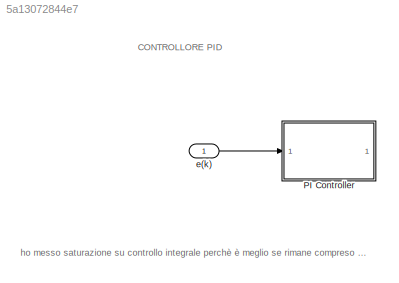
MODEL slx_5a13072844e7
KIND model
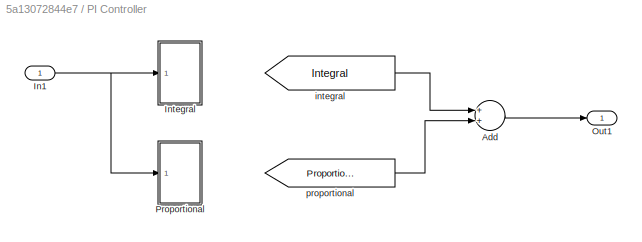
BLOCK [SubSystem] PI Controller
  FunctionWithSeparateData = off
  MaskHideContents = off
  MinAlgLoopOccurrences = off
  Opaque = off
  Ports = [1, 1]
  PropExecContextOutsideSubsystem = off
  RTWSystemCode = Auto
  RequestExecContextInheritance = off
BLOCK [Sum] PI Controller/Add
  InputSameDT = off
  OutDataTypeStr = Inherit: Inherit via internal rule
  Ports = [2, 1]
  SaturateOnIntegerOverflow = off
BLOCK [Inport] PI Controller/In1
  IconDisplay = Port number
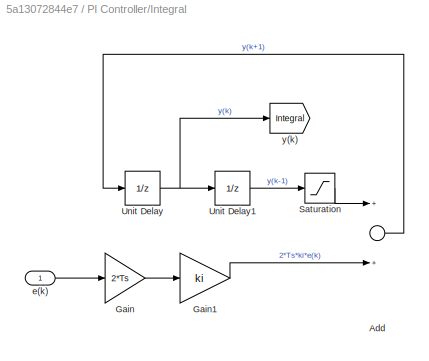
BLOCK [SubSystem] PI Controller/Integral
  FunctionWithSeparateData = off
  MaskHideContents = off
  MinAlgLoopOccurrences = off
  Opaque = off
  Ports = [1]
  PropExecContextOutsideSubsystem = off
  RTWSystemCode = Auto
  RequestExecContextInheritance = off
BLOCK [Sum] PI Controller/Integral/Add
  InputSameDT = off
  OutDataTypeStr = Inherit: Inherit via internal rule
  Ports = [2, 1]
  SaturateOnIntegerOverflow = off
BLOCK [Gain] PI Controller/Integral/Gain
  Gain = 2*Ts
  OutDataTypeStr = Inherit: Inherit via internal rule
  ParamDataTypeStr = Inherit: Inherit via internal rule
  SaturateOnIntegerOverflow = off
BLOCK [Gain] PI Controller/Integral/Gain1
  Gain = ki
  OutDataTypeStr = Inherit: Inherit via internal rule
  ParamDataTypeStr = Inherit: Inherit via internal rule
  SaturateOnIntegerOverflow = off
BLOCK [Saturate] PI Controller/Integral/Saturation
  AttributesFormatString = %<LowerLimit>\n%<UpperLimit>
  InputPortMap = u0
  LowerLimit = -1
  Ports = [1, 1]
  UpperLimit = 1
BLOCK [UnitDelay] PI Controller/Integral/Unit Delay
  InputProcessing = Elements as channels (sample based)
  SampleTime = Ts
BLOCK [UnitDelay] PI Controller/Integral/Unit Delay1
  InputProcessing = Elements as channels (sample based)
  SampleTime = Ts
BLOCK [Inport] PI Controller/Integral/e(k)
  IconDisplay = Port number
BLOCK [Goto] PI Controller/Integral/y(k)
  GotoTag = Integral
  TagVisibility = global
BLOCK [Outport] PI Controller/Out1
  IconDisplay = Port number
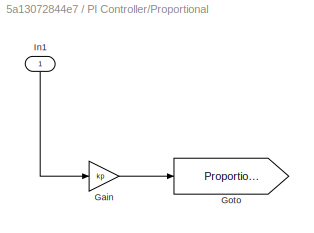
BLOCK [SubSystem] PI Controller/Proportional
  FunctionWithSeparateData = off
  MaskHideContents = off
  MinAlgLoopOccurrences = off
  Opaque = off
  Ports = [1]
  PropExecContextOutsideSubsystem = off
  RTWSystemCode = Auto
  RequestExecContextInheritance = off
BLOCK [Gain] PI Controller/Proportional/Gain
  Gain = kp
  OutDataTypeStr = Inherit: Inherit via internal rule
  ParamDataTypeStr = Inherit: Inherit via internal rule
  SaturateOnIntegerOverflow = off
BLOCK [Goto] PI Controller/Proportional/Goto
  GotoTag = Proportional
  TagVisibility = global
BLOCK [Inport] PI Controller/Proportional/In1
  IconDisplay = Port number
BLOCK [From] PI Controller/integral
  GotoTag = Integral
  TagVisibility = global
BLOCK [From] PI Controller/proportional
  GotoTag = Proportional
  TagVisibility = global
BLOCK [Inport] e(k)
  IconDisplay = Port number
ANNOTATION (root): CONTROLLORE PID
ANNOTATION (root): ho messo saturazione su controllo integrale perchè è meglio se rimane compreso tra -1 e +1 per problemi di wind up
LINE PI Controller/Add:1 -> PI Controller/Out1:1
NET PI Controller/In1:1 -> PI Controller/Integral:1, PI Controller/Proportional:1
LINE PI Controller/Integral/Add:1 -> PI Controller/Integral/Unit Delay:1
LINE PI Controller/Integral/Gain1:1 -> PI Controller/Integral/Add:2
LINE PI Controller/Integral/Gain:1 -> PI Controller/Integral/Gain1:1
LINE PI Controller/Integral/Saturation:1 -> PI Controller/Integral/Add:1
LINE PI Controller/Integral/Unit Delay1:1 -> PI Controller/Integral/Saturation:1
NET PI Controller/Integral/Unit Delay:1 -> PI Controller/Integral/Unit Delay1:1, PI Controller/Integral/y(k):1
LINE PI Controller/Integral/e(k):1 -> PI Controller/Integral/Gain:1
LINE PI Controller/Proportional/Gain:1 -> PI Controller/Proportional/Goto:1
LINE PI Controller/Proportional/In1:1 -> PI Controller/Proportional/Gain:1
LINE PI Controller/integral:1 -> PI Controller/Add:1
LINE PI Controller/proportional:1 -> PI Controller/Add:2
LINE e(k):1 -> PI Controller:1
note: NET lines group one-source signal fan-out (src -> all destinations, sorted); 1:1 wires keep LINE
